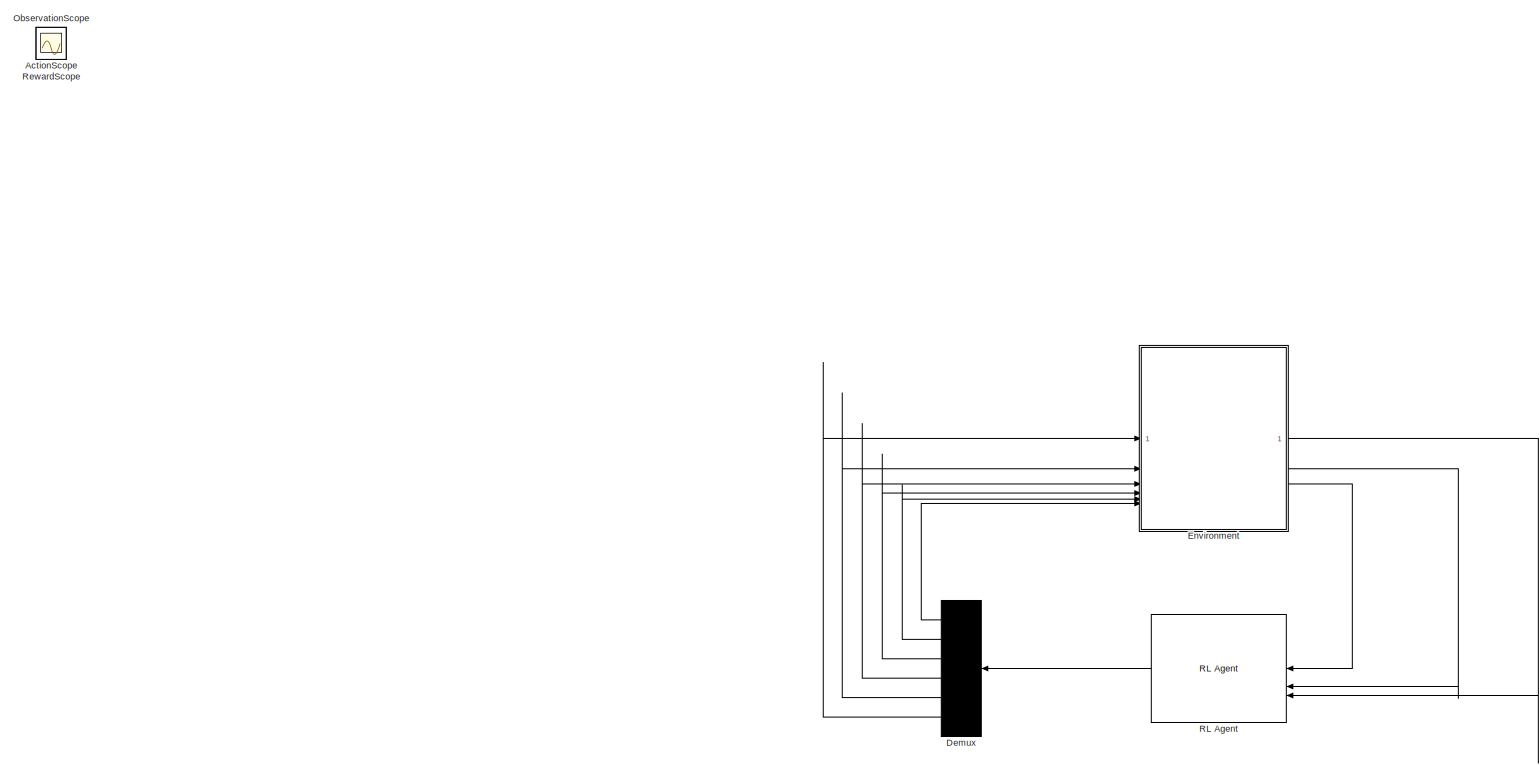
[diagram: root canvas - part 1/1, most of the canvas]
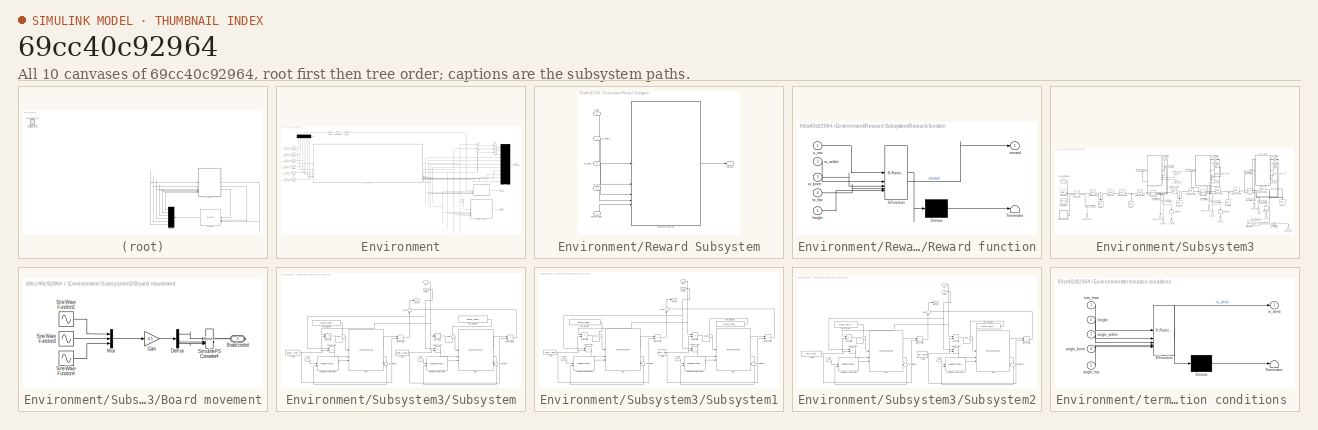
[diagram: thumbnail index - all 10 canvases of the model, root first then tree order]
MODEL slx_69cc40c92964
KIND model
CONFIG AbsTol = auto
CONFIG EnableMultiTasking = off
CONFIG FixedStep = auto
CONFIG MaxStep = auto
CONFIG MinStep = auto
CONFIG RelTol = 1e-3
CONFIG SampleTimeConstraint = Unconstrained
CONFIG SolverName = VariableStepAuto
CONFIG StartTime = 0.0
CONFIG StopTime = 25
WORKSPACE source: MATLAB code (in-file)
WORKSPACE mCart = 1
WORKSPACE mPend = 1
WORKSPACE g = 9.81
WORKSPACE L = 0.5
WORKSPACE theta0 = 180
WORKSPACE Kd = 10
BLOCK [Scope] ActionScope
  Floating = off
  IOType = viewer
  NumInputPorts = 1
  ScopeSpecificationString = Simulink.scopes.TimeScopeBlockCfg('CurrentConfiguration', extmgr.ConfigurationSet(extmgr.Configuration('Core','General UI',true),extmgr.Configuration('Core','Source UI',true),extmgr.Configuration('Sources','WiredSimulink',true,'DataLoggingVariableName','ScopeData1'),extmgr.Configuration('Visuals','Time Domain',true,'SerializedDisplays',{struct('MinYLimReal','-16','MaxYLimReal','16','YLabelReal',''...<+1414ch>
BLOCK [Demux] Demux
  NameLocation = top
  Outputs = 6
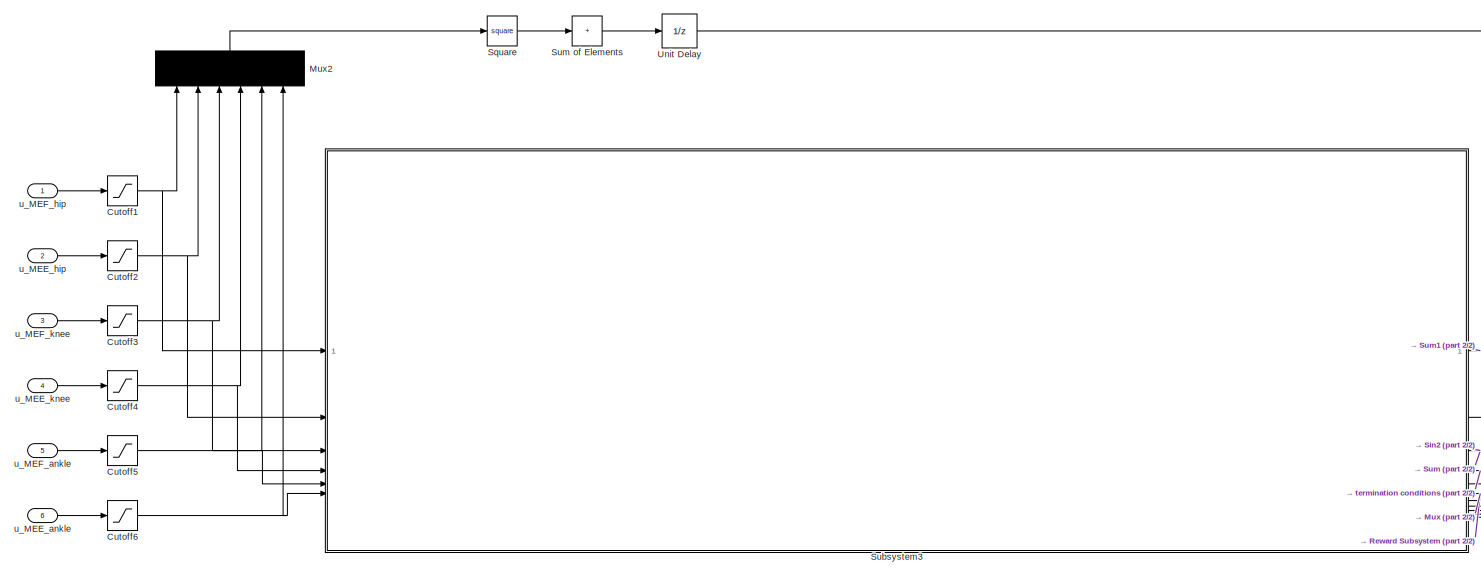
[diagram: Environment - part 1/2, top left region]
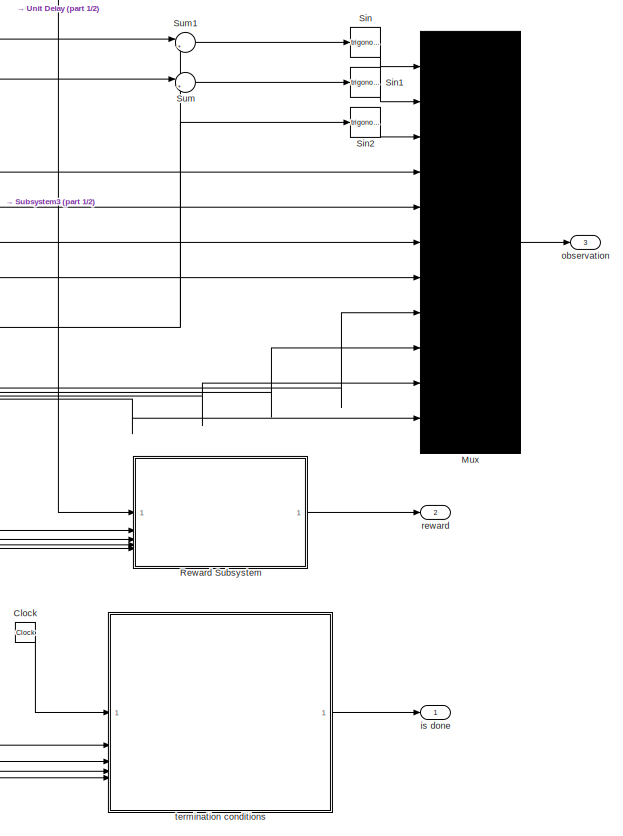
[diagram: Environment - part 2/2, right side, full height]
BLOCK [SubSystem] Environment
BLOCK [Clock] Environment/Clock
BLOCK [Saturate] Environment/Cutoff1
  LowerLimit = 0
  UpperLimit = u_cutoff
BLOCK [Saturate] Environment/Cutoff2
  LowerLimit = 0
  UpperLimit = u_cutoff
BLOCK [Saturate] Environment/Cutoff3
  LowerLimit = 0
  UpperLimit = u_cutoff
BLOCK [Saturate] Environment/Cutoff4
  LowerLimit = 0
  UpperLimit = u_cutoff
BLOCK [Saturate] Environment/Cutoff5
  LowerLimit = 0
  UpperLimit = u_cutoff
BLOCK [Saturate] Environment/Cutoff6
  LowerLimit = 0
  UpperLimit = u_cutoff
BLOCK [Mux] Environment/Mux
  DisplayOption = bar
  Inputs = 11
BLOCK [Mux] Environment/Mux2
  DisplayOption = bar
  Inputs = 6
  NameLocation = right
BLOCK [SubSystem] Environment/Reward Subsystem
BLOCK [SubSystem] Environment/Reward Subsystem/Reward function
  ErrorFcn = Stateflow.Translate.translate
  PermitHierarchicalResolution = ExplicitOnly
  SFBlockType = MATLAB Function
  TreatAsAtomicUnit = on
BLOCK [Demux] Environment/Reward Subsystem/Reward function/ Demux 
  Outputs = 1
BLOCK [S-Function] Environment/Reward Subsystem/Reward function/ SFunction 
  EnableBusSupport = on
  FunctionName = sf_sfun
  PortCounts = [5 2]
  SFcnIsStateOwnerBlock = off
  SFunctionDeploymentMode = off
  Tag = Stateflow S-Function 3
BLOCK [Terminator] Environment/Reward Subsystem/Reward function/ Terminator 
BLOCK [Inport] Environment/Reward Subsystem/Reward function/height
  Port = 5
BLOCK [Outport] Environment/Reward Subsystem/Reward function/reward
BLOCK [Inport] Environment/Reward Subsystem/Reward function/u_vec
BLOCK [Inport] Environment/Reward Subsystem/Reward function/w_ankle
  Port = 2
BLOCK [Inport] Environment/Reward Subsystem/Reward function/w_hip
  Port = 4
BLOCK [Inport] Environment/Reward Subsystem/Reward function/w_knee
  Port = 3
BLOCK [Inport] Environment/Reward Subsystem/height_body
  Port = 2
BLOCK [Outport] Environment/Reward Subsystem/reward
BLOCK [Inport] Environment/Reward Subsystem/u_vec
BLOCK [Inport] Environment/Reward Subsystem/w_ankle
  Port = 3
BLOCK [Inport] Environment/Reward Subsystem/w_hip
  Port = 4
BLOCK [Inport] Environment/Reward Subsystem/w_knee
  Port = 5
BLOCK [Trigonometry] Environment/Sin
BLOCK [Trigonometry] Environment/Sin1
BLOCK [Trigonometry] Environment/Sin2
BLOCK [Math] Environment/Square
  Operator = square
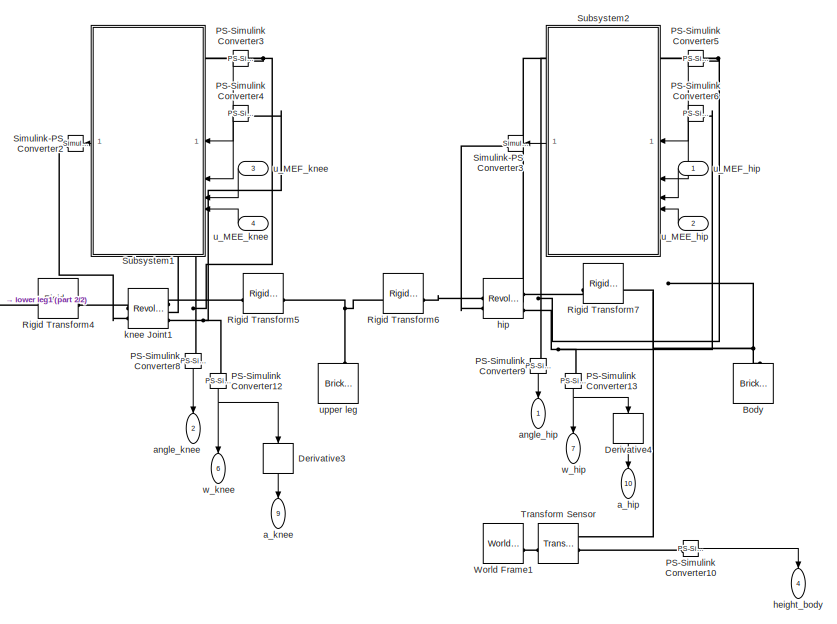
[diagram: Environment/Subsystem3 - part 1/2, right side, full height]
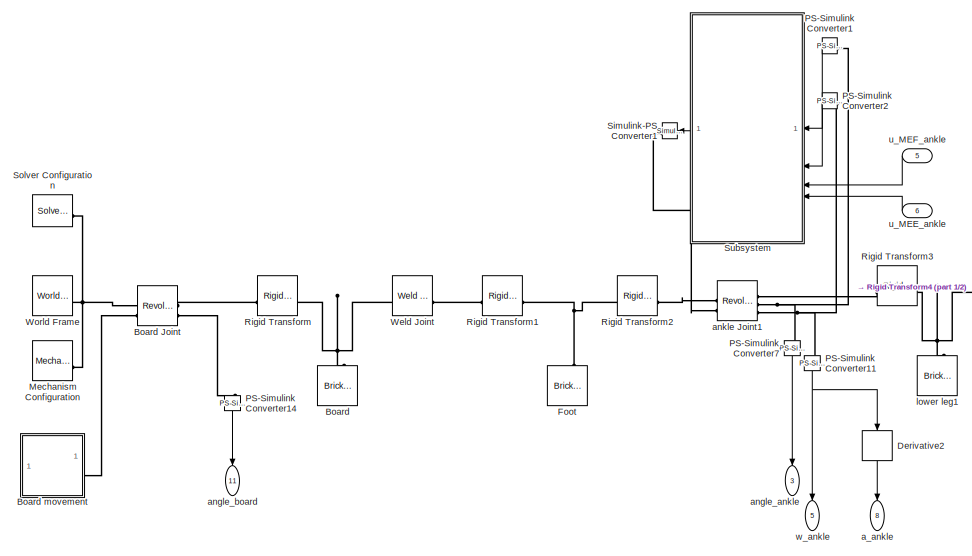
[diagram: Environment/Subsystem3 - part 2/2, left side, full height]
BLOCK [SubSystem] Environment/Subsystem3
BLOCK [Reference] Environment/Subsystem3/Board  REF=sm_lib/Body Elements/Brick Solid
  SourceBlock = sm_lib/Body Elements/Brick Solid
  SourceType = Brick Solid
BLOCK [Reference] Environment/Subsystem3/Board Joint  REF=sm_lib/Joints/Revolute Joint
  SourceBlock = sm_lib/Joints/Revolute Joint
  SourceType = Revolute Joint
BLOCK [SubSystem] Environment/Subsystem3/Board movement
BLOCK [PMIOPort] Environment/Subsystem3/Board movement/Board control
  Side = Right
BLOCK [Demux] Environment/Subsystem3/Board movement/Demux
  Outputs = 3
BLOCK [Gain] Environment/Subsystem3/Board movement/Gain
  Gain = 0.5
BLOCK [Mux] Environment/Subsystem3/Board movement/Mux
  DisplayOption = bar
  Inputs = 3
BLOCK [Reference] Environment/Subsystem3/Board movement/Simulink-PS Converter4  REF=nesl_utility/Simulink-PS
Converter
  SourceBlock = nesl_utility/Simulink-PS\nConverter
  SourceType = Simulink-PS\nConverter
BLOCK [Sin] Environment/Subsystem3/Board movement/Sine Wave Function2
  Amplitude = 0.5
  Frequency = board_freq
  SampleTime = 0
BLOCK [Sin] Environment/Subsystem3/Board movement/Sine Wave Function3
  Amplitude = 0.5*board_freq
  Frequency = board_freq
  Phase = pi/2
  SampleTime = 0
BLOCK [Sin] Environment/Subsystem3/Board movement/Sine Wave Function4
  Amplitude = -0.5*board_freq*board_freq
  Frequency = board_freq
  SampleTime = 0
BLOCK [Reference] Environment/Subsystem3/Body  REF=sm_lib/Body Elements/Brick Solid
  SourceBlock = sm_lib/Body Elements/Brick Solid
  SourceType = Brick Solid
BLOCK [Derivative] Environment/Subsystem3/Derivative2
  NameLocation = left
BLOCK [Derivative] Environment/Subsystem3/Derivative3
  NameLocation = left
BLOCK [Derivative] Environment/Subsystem3/Derivative4
  NameLocation = left
BLOCK [Reference] Environment/Subsystem3/Foot  REF=sm_lib/Body Elements/Brick Solid
  SourceBlock = sm_lib/Body Elements/Brick Solid
  SourceType = Brick Solid
BLOCK [Reference] Environment/Subsystem3/Mechanism Configuration  REF=sm_lib/Utilities/Mechanism
Configuration
  SourceBlock = sm_lib/Utilities/Mechanism\nConfiguration
  SourceType = Mechanism\nConfiguration
BLOCK [Reference] Environment/Subsystem3/PS-Simulink Converter1  REF=nesl_utility/PS-Simulink
Converter
  NameLocation = top
  SourceBlock = nesl_utility/PS-Simulink\nConverter
  SourceType = PS-Simulink\nConverter
BLOCK [Reference] Environment/Subsystem3/PS-Simulink Converter10  REF=nesl_utility/PS-Simulink
Converter
  SourceBlock = nesl_utility/PS-Simulink\nConverter
  SourceType = PS-Simulink\nConverter
BLOCK [Reference] Environment/Subsystem3/PS-Simulink Converter11  REF=nesl_utility/PS-Simulink
Converter
  NameLocation = left
  SourceBlock = nesl_utility/PS-Simulink\nConverter
  SourceType = PS-Simulink\nConverter
BLOCK [Reference] Environment/Subsystem3/PS-Simulink Converter12  REF=nesl_utility/PS-Simulink
Converter
  NameLocation = left
  SourceBlock = nesl_utility/PS-Simulink\nConverter
  SourceType = PS-Simulink\nConverter
BLOCK [Reference] Environment/Subsystem3/PS-Simulink Converter13  REF=nesl_utility/PS-Simulink
Converter
  NameLocation = left
  SourceBlock = nesl_utility/PS-Simulink\nConverter
  SourceType = PS-Simulink\nConverter
BLOCK [Reference] Environment/Subsystem3/PS-Simulink Converter14  REF=nesl_utility/PS-Simulink
Converter
  NameLocation = left
  SourceBlock = nesl_utility/PS-Simulink\nConverter
  SourceType = PS-Simulink\nConverter
BLOCK [Reference] Environment/Subsystem3/PS-Simulink Converter2  REF=nesl_utility/PS-Simulink
Converter
  NameLocation = top
  SourceBlock = nesl_utility/PS-Simulink\nConverter
  SourceType = PS-Simulink\nConverter
BLOCK [Reference] Environment/Subsystem3/PS-Simulink Converter3  REF=nesl_utility/PS-Simulink
Converter
  NameLocation = top
  SourceBlock = nesl_utility/PS-Simulink\nConverter
  SourceType = PS-Simulink\nConverter
BLOCK [Reference] Environment/Subsystem3/PS-Simulink Converter4  REF=nesl_utility/PS-Simulink
Converter
  NameLocation = top
  SourceBlock = nesl_utility/PS-Simulink\nConverter
  SourceType = PS-Simulink\nConverter
BLOCK [Reference] Environment/Subsystem3/PS-Simulink Converter5  REF=nesl_utility/PS-Simulink
Converter
  NameLocation = top
  SourceBlock = nesl_utility/PS-Simulink\nConverter
  SourceType = PS-Simulink\nConverter
BLOCK [Reference] Environment/Subsystem3/PS-Simulink Converter6  REF=nesl_utility/PS-Simulink
Converter
  NameLocation = top
  SourceBlock = nesl_utility/PS-Simulink\nConverter
  SourceType = PS-Simulink\nConverter
BLOCK [Reference] Environment/Subsystem3/PS-Simulink Converter7  REF=nesl_utility/PS-Simulink
Converter
  NameLocation = left
  SourceBlock = nesl_utility/PS-Simulink\nConverter
  SourceType = PS-Simulink\nConverter
BLOCK [Reference] Environment/Subsystem3/PS-Simulink Converter8  REF=nesl_utility/PS-Simulink
Converter
  NameLocation = left
  SourceBlock = nesl_utility/PS-Simulink\nConverter
  SourceType = PS-Simulink\nConverter
BLOCK [Reference] Environment/Subsystem3/PS-Simulink Converter9  REF=nesl_utility/PS-Simulink
Converter
  NameLocation = left
  SourceBlock = nesl_utility/PS-Simulink\nConverter
  SourceType = PS-Simulink\nConverter
BLOCK [Reference] Environment/Subsystem3/Rigid Transform  REF=sm_lib/Frames and
Transforms/Rigid
Transform
  SourceBlock = sm_lib/Frames and\nTransforms/Rigid\nTransform
  SourceType = Rigid\nTransform
BLOCK [Reference] Environment/Subsystem3/Rigid Transform1  REF=sm_lib/Frames and
Transforms/Rigid
Transform
  SourceBlock = sm_lib/Frames and\nTransforms/Rigid\nTransform
  SourceType = Rigid\nTransform
BLOCK [Reference] Environment/Subsystem3/Rigid Transform2  REF=sm_lib/Frames and
Transforms/Rigid
Transform
  SourceBlock = sm_lib/Frames and\nTransforms/Rigid\nTransform
  SourceType = Rigid\nTransform
BLOCK [Reference] Environment/Subsystem3/Rigid Transform3  REF=sm_lib/Frames and
Transforms/Rigid
Transform
  SourceBlock = sm_lib/Frames and\nTransforms/Rigid\nTransform
  SourceType = Rigid\nTransform
BLOCK [Reference] Environment/Subsystem3/Rigid Transform4  REF=sm_lib/Frames and
Transforms/Rigid
Transform
  SourceBlock = sm_lib/Frames and\nTransforms/Rigid\nTransform
  SourceType = Rigid\nTransform
BLOCK [Reference] Environment/Subsystem3/Rigid Transform5  REF=sm_lib/Frames and
Transforms/Rigid
Transform
  SourceBlock = sm_lib/Frames and\nTransforms/Rigid\nTransform
  SourceType = Rigid\nTransform
BLOCK [Reference] Environment/Subsystem3/Rigid Transform6  REF=sm_lib/Frames and
Transforms/Rigid
Transform
  SourceBlock = sm_lib/Frames and\nTransforms/Rigid\nTransform
  SourceType = Rigid\nTransform
BLOCK [Reference] Environment/Subsystem3/Rigid Transform7  REF=sm_lib/Frames and
Transforms/Rigid
Transform
  SourceBlock = sm_lib/Frames and\nTransforms/Rigid\nTransform
  SourceType = Rigid\nTransform
BLOCK [Reference] Environment/Subsystem3/Simulink-PS Converter1  REF=nesl_utility/Simulink-PS
Converter
  NameLocation = top
  SourceBlock = nesl_utility/Simulink-PS\nConverter
  SourceType = Simulink-PS\nConverter
BLOCK [Reference] Environment/Subsystem3/Simulink-PS Converter2  REF=nesl_utility/Simulink-PS
Converter
  NameLocation = top
  SourceBlock = nesl_utility/Simulink-PS\nConverter
  SourceType = Simulink-PS\nConverter
BLOCK [Reference] Environment/Subsystem3/Simulink-PS Converter3  REF=nesl_utility/Simulink-PS
Converter
  NameLocation = top
  SourceBlock = nesl_utility/Simulink-PS\nConverter
  SourceType = Simulink-PS\nConverter
BLOCK [Reference] Environment/Subsystem3/Solver Configuration  REF=nesl_utility/Solver
Configuration
  SourceBlock = nesl_utility/Solver\nConfiguration
  SourceType = Solver\nConfiguration
BLOCK [SubSystem] Environment/Subsystem3/Subsystem
  NameLocation = top
BLOCK [Reference] Environment/Subsystem3/Subsystem/ActivationDynamicsHatze  REF=Library_mtu_simulink/ActivationDynamicsHatze
  SourceBlock = Library_mtu_simulink/ActivationDynamicsHatze
  SourceType = Activation Dynamics
BLOCK [Reference] Environment/Subsystem3/Subsystem/ActivationDynamicsHatze1  REF=Library_mtu_simulink/ActivationDynamicsHatze
  SourceBlock = Library_mtu_simulink/ActivationDynamicsHatze
  SourceType = Activation Dynamics
BLOCK [Reference] Environment/Subsystem3/Subsystem/MEE  REF=Library_mtu_simulink/MuscleTendonUnit
  SourceBlock = Library_mtu_simulink/MuscleTendonUnit
  SourceType = Muscle Tendon Complex Model
BLOCK [Reference] Environment/Subsystem3/Subsystem/MEF  REF=Library_mtu_simulink/MuscleTendonUnit
  SourceBlock = Library_mtu_simulink/MuscleTendonUnit
  SourceType = Muscle Tendon Complex Model
BLOCK [Sum] Environment/Subsystem3/Subsystem/Sum
  Inputs = +|+
BLOCK [Sum] Environment/Subsystem3/Subsystem/Sum1
  Inputs = +|+
BLOCK [Sum] Environment/Subsystem3/Subsystem/Sum2
  Inputs = |--
  NameLocation = right
BLOCK [Terminator] Environment/Subsystem3/Subsystem/Terminator
BLOCK [Terminator] Environment/Subsystem3/Subsystem/Terminator1
BLOCK [Product] Environment/Subsystem3/Subsystem/fMTU*rMEE
BLOCK [Product] Environment/Subsystem3/Subsystem/fMTU*rMEF
BLOCK [Constant] Environment/Subsystem3/Subsystem/lMTC_init_MEE
  Value = Param_ankle_MEE.l_MTC_init
BLOCK [Constant] Environment/Subsystem3/Subsystem/lMTC_init_MEF
  Value = Param_ankle_MEF.l_MTC_init
BLOCK [Inport] Environment/Subsystem3/Subsystem/phi
BLOCK [Product] Environment/Subsystem3/Subsystem/phi*rMEE
BLOCK [Product] Environment/Subsystem3/Subsystem/phi*rMEF
BLOCK [Inport] Environment/Subsystem3/Subsystem/phidot
  Port = 2
BLOCK [Product] Environment/Subsystem3/Subsystem/phidot*rMEE
BLOCK [Product] Environment/Subsystem3/Subsystem/phidot*rMEF
BLOCK [Constant] Environment/Subsystem3/Subsystem/r_MEE
  Value = ankle_r_MEE
BLOCK [Constant] Environment/Subsystem3/Subsystem/r_MEF
  Value = ankle_r_MEF
BLOCK [Outport] Environment/Subsystem3/Subsystem/torque
BLOCK [Inport] Environment/Subsystem3/Subsystem/u_MEE
  Port = 4
BLOCK [Inport] Environment/Subsystem3/Subsystem/u_MEF
  Port = 3
BLOCK [SubSystem] Environment/Subsystem3/Subsystem1
  NameLocation = top
BLOCK [Reference] Environment/Subsystem3/Subsystem1/ActivationDynamicsHatze  REF=Library_mtu_simulink/ActivationDynamicsHatze
  SourceBlock = Library_mtu_simulink/ActivationDynamicsHatze
  SourceType = Activation Dynamics
BLOCK [Reference] Environment/Subsystem3/Subsystem1/ActivationDynamicsHatze1  REF=Library_mtu_simulink/ActivationDynamicsHatze
  SourceBlock = Library_mtu_simulink/ActivationDynamicsHatze
  SourceType = Activation Dynamics
BLOCK [Reference] Environment/Subsystem3/Subsystem1/MEE  REF=Library_mtu_simulink/MuscleTendonUnit
  SourceBlock = Library_mtu_simulink/MuscleTendonUnit
  SourceType = Muscle Tendon Complex Model
BLOCK [Reference] Environment/Subsystem3/Subsystem1/MEF  REF=Library_mtu_simulink/MuscleTendonUnit
  SourceBlock = Library_mtu_simulink/MuscleTendonUnit
  SourceType = Muscle Tendon Complex Model
BLOCK [Sum] Environment/Subsystem3/Subsystem1/Sum
  Inputs = +|+
BLOCK [Sum] Environment/Subsystem3/Subsystem1/Sum1
  Inputs = +|+
BLOCK [Sum] Environment/Subsystem3/Subsystem1/Sum2
  Inputs = |--
  NameLocation = right
BLOCK [Terminator] Environment/Subsystem3/Subsystem1/Terminator
BLOCK [Terminator] Environment/Subsystem3/Subsystem1/Terminator1
BLOCK [Product] Environment/Subsystem3/Subsystem1/fMTU*rMEE
BLOCK [Product] Environment/Subsystem3/Subsystem1/fMTU*rMEF
BLOCK [Constant] Environment/Subsystem3/Subsystem1/lMTC_init_MEE
  Value = Param_knee_MEE.l_MTC_init
BLOCK [Constant] Environment/Subsystem3/Subsystem1/lMTC_init_MEF
  Value = Param_knee_MEF.l_MTC_init
BLOCK [Inport] Environment/Subsystem3/Subsystem1/phi
BLOCK [Product] Environment/Subsystem3/Subsystem1/phi*rMEE
BLOCK [Product] Environment/Subsystem3/Subsystem1/phi*rMEF
BLOCK [Inport] Environment/Subsystem3/Subsystem1/phidot
  Port = 2
BLOCK [Product] Environment/Subsystem3/Subsystem1/phidot*rMEE
BLOCK [Product] Environment/Subsystem3/Subsystem1/phidot*rMEF
BLOCK [Constant] Environment/Subsystem3/Subsystem1/r_MEE
  Value = knee_r_MEE
BLOCK [Constant] Environment/Subsystem3/Subsystem1/r_MEF
  Value = knee_r_MEF
BLOCK [Outport] Environment/Subsystem3/Subsystem1/torque
BLOCK [Inport] Environment/Subsystem3/Subsystem1/u_MEE
  Port = 4
BLOCK [Inport] Environment/Subsystem3/Subsystem1/u_MEF
  Port = 3
BLOCK [SubSystem] Environment/Subsystem3/Subsystem2
  NameLocation = top
BLOCK [Reference] Environment/Subsystem3/Subsystem2/ActivationDynamicsHatze  REF=Library_mtu_simulink/ActivationDynamicsHatze
  SourceBlock = Library_mtu_simulink/ActivationDynamicsHatze
  SourceType = Activation Dynamics
BLOCK [Reference] Environment/Subsystem3/Subsystem2/ActivationDynamicsHatze1  REF=Library_mtu_simulink/ActivationDynamicsHatze
  SourceBlock = Library_mtu_simulink/ActivationDynamicsHatze
  SourceType = Activation Dynamics
BLOCK [Reference] Environment/Subsystem3/Subsystem2/MEE  REF=Library_mtu_simulink/MuscleTendonUnit
  SourceBlock = Library_mtu_simulink/MuscleTendonUnit
  SourceType = Muscle Tendon Complex Model
BLOCK [Reference] Environment/Subsystem3/Subsystem2/MEF  REF=Library_mtu_simulink/MuscleTendonUnit
  SourceBlock = Library_mtu_simulink/MuscleTendonUnit
  SourceType = Muscle Tendon Complex Model
BLOCK [Sum] Environment/Subsystem3/Subsystem2/Sum
  Inputs = +|+
BLOCK [Sum] Environment/Subsystem3/Subsystem2/Sum1
  Inputs = +|+
BLOCK [Sum] Environment/Subsystem3/Subsystem2/Sum2
  Inputs = |--
  NameLocation = right
BLOCK [Terminator] Environment/Subsystem3/Subsystem2/Terminator
BLOCK [Terminator] Environment/Subsystem3/Subsystem2/Terminator1
BLOCK [Product] Environment/Subsystem3/Subsystem2/fMTU*rMEE
BLOCK [Product] Environment/Subsystem3/Subsystem2/fMTU*rMEF
BLOCK [Constant] Environment/Subsystem3/Subsystem2/lMTC_init_MEE
  Value = Param_hip_MEE.l_MTC_init
BLOCK [Constant] Environment/Subsystem3/Subsystem2/lMTC_init_MEF
  Value = Param_hip_MEF.l_MTC_init
BLOCK [Inport] Environment/Subsystem3/Subsystem2/phi
BLOCK [Product] Environment/Subsystem3/Subsystem2/phi*rMEE
BLOCK [Product] Environment/Subsystem3/Subsystem2/phi*rMEF
BLOCK [Inport] Environment/Subsystem3/Subsystem2/phidot
  Port = 2
BLOCK [Product] Environment/Subsystem3/Subsystem2/phidot*rMEE
BLOCK [Product] Environment/Subsystem3/Subsystem2/phidot*rMEF
BLOCK [Constant] Environment/Subsystem3/Subsystem2/r_MEE
  Value = hip_r_MEE
BLOCK [Constant] Environment/Subsystem3/Subsystem2/r_MEF
  Value = hip_r_MEF
BLOCK [Outport] Environment/Subsystem3/Subsystem2/torque
BLOCK [Inport] Environment/Subsystem3/Subsystem2/u_MEE
  Port = 4
BLOCK [Inport] Environment/Subsystem3/Subsystem2/u_MEF
  Port = 3
BLOCK [Reference] Environment/Subsystem3/Transform Sensor  REF=sm_lib/Frames and
Transforms/Transform
Sensor
  SourceBlock = sm_lib/Frames and\nTransforms/Transform\nSensor
  SourceType = Transform\nSensor
BLOCK [Reference] Environment/Subsystem3/Weld Joint  REF=sm_lib/Joints/Weld Joint
  SourceBlock = sm_lib/Joints/Weld Joint
  SourceType = Weld Joint
BLOCK [Reference] Environment/Subsystem3/World Frame  REF=sm_lib/Frames and
Transforms/World Frame
  SourceBlock = sm_lib/Frames and\nTransforms/World Frame
  SourceType = World Frame
BLOCK [Reference] Environment/Subsystem3/World Frame1  REF=sm_lib/Frames and
Transforms/World Frame
  SourceBlock = sm_lib/Frames and\nTransforms/World Frame
  SourceType = World Frame
BLOCK [Outport] Environment/Subsystem3/a_ankle
  NameLocation = left
  Port = 8
BLOCK [Outport] Environment/Subsystem3/a_hip
  NameLocation = left
  Port = 10
BLOCK [Outport] Environment/Subsystem3/a_knee
  NameLocation = left
  Port = 9
BLOCK [Outport] Environment/Subsystem3/angle_ankle
  NameLocation = left
  Port = 3
BLOCK [Outport] Environment/Subsystem3/angle_board
  NameLocation = left
  Port = 11
BLOCK [Outport] Environment/Subsystem3/angle_hip
  NameLocation = left
BLOCK [Outport] Environment/Subsystem3/angle_knee
  NameLocation = left
  Port = 2
BLOCK [Reference] Environment/Subsystem3/ankle Joint1  REF=sm_lib/Joints/Revolute Joint
  SourceBlock = sm_lib/Joints/Revolute Joint
  SourceType = Revolute Joint
BLOCK [Outport] Environment/Subsystem3/height_body
  NameLocation = left
  Port = 4
BLOCK [Reference] Environment/Subsystem3/hip  REF=sm_lib/Joints/Revolute Joint
  SourceBlock = sm_lib/Joints/Revolute Joint
  SourceType = Revolute Joint
BLOCK [Reference] Environment/Subsystem3/knee Joint1  REF=sm_lib/Joints/Revolute Joint
  SourceBlock = sm_lib/Joints/Revolute Joint
  SourceType = Revolute Joint
BLOCK [Reference] Environment/Subsystem3/lower leg1  REF=sm_lib/Body Elements/Brick Solid
  SourceBlock = sm_lib/Body Elements/Brick Solid
  SourceType = Brick Solid
BLOCK [Inport] Environment/Subsystem3/u_MEE_ankle
  Port = 6
BLOCK [Inport] Environment/Subsystem3/u_MEE_hip
  NameLocation = top
  Port = 2
BLOCK [Inport] Environment/Subsystem3/u_MEE_knee
  Port = 4
BLOCK [Inport] Environment/Subsystem3/u_MEF_ankle
  NameLocation = top
  Port = 5
BLOCK [Inport] Environment/Subsystem3/u_MEF_hip
BLOCK [Inport] Environment/Subsystem3/u_MEF_knee
  NameLocation = top
  Port = 3
BLOCK [Reference] Environment/Subsystem3/upper leg  REF=sm_lib/Body Elements/Brick Solid
  SourceBlock = sm_lib/Body Elements/Brick Solid
  SourceType = Brick Solid
BLOCK [Outport] Environment/Subsystem3/w_ankle
  NameLocation = left
  Port = 5
BLOCK [Outport] Environment/Subsystem3/w_hip
  NameLocation = left
  Port = 7
BLOCK [Outport] Environment/Subsystem3/w_knee
  NameLocation = left
  Port = 6
BLOCK [Sum] Environment/Sum
  Inputs = |++
BLOCK [Sum] Environment/Sum of Elements
  IconShape = rectangular
  Inputs = +
BLOCK [Sum] Environment/Sum1
  Inputs = |++
BLOCK [UnitDelay] Environment/Unit Delay
  HasFrameUpgradeWarning = on
  SampleTime = -1
BLOCK [Outport] Environment/is done
  VectorParamsAs1DForOutWhenUnconnected = off
BLOCK [Outport] Environment/observation
  Port = 3
BLOCK [Outport] Environment/reward
  Port = 2
  VectorParamsAs1DForOutWhenUnconnected = off
BLOCK [SubSystem] Environment/termination conditions 
  ErrorFcn = Stateflow.Translate.translate
  PermitHierarchicalResolution = ExplicitOnly
  SFBlockType = MATLAB Function
  TreatAsAtomicUnit = on
BLOCK [Demux] Environment/termination conditions / Demux 
  Outputs = 1
BLOCK [S-Function] Environment/termination conditions / SFunction 
  EnableBusSupport = on
  FunctionName = sf_sfun
  PortCounts = [5 2]
  SFcnIsStateOwnerBlock = off
  SFunctionDeploymentMode = off
  Tag = Stateflow S-Function 1
BLOCK [Terminator] Environment/termination conditions / Terminator 
BLOCK [Inport] Environment/termination conditions /angle_ankle
  Port = 3
BLOCK [Inport] Environment/termination conditions /angle_hip
  Port = 5
BLOCK [Inport] Environment/termination conditions /angle_knee
  Port = 4
BLOCK [Inport] Environment/termination conditions /height
  Port = 2
BLOCK [Outport] Environment/termination conditions /is_done
BLOCK [Inport] Environment/termination conditions /sim_time
BLOCK [Inport] Environment/u_MEE_ankle
  Port = 6
BLOCK [Inport] Environment/u_MEE_hip
  Port = 2
BLOCK [Inport] Environment/u_MEE_knee
  Port = 4
BLOCK [Inport] Environment/u_MEF_ankle
  Port = 5
BLOCK [Inport] Environment/u_MEF_hip
BLOCK [Inport] Environment/u_MEF_knee
  Port = 3
BLOCK [Scope] ObservationScope
  Floating = off
  IOType = viewer
  NumInputPorts = 1
  ScopeSpecificationString = Simulink.scopes.TimeScopeBlockCfg('CurrentConfiguration', extmgr.ConfigurationSet(extmgr.Configuration('Core','General UI',true),extmgr.Configuration('Core','Source UI',true),extmgr.Configuration('Sources','WiredSimulink',true),extmgr.Configuration('Visuals','Time Domain',true,'SerializedDisplays',{struct('MinYLimReal','-0.2486','MaxYLimReal','0.02762','YLabelReal','','MinYLimMag','0.00000','MaxYL...<+3374ch>
BLOCK [Reference] RL Agent  REF=rllib/RL Agent
  SourceBlock = rllib/RL Agent
  SourceType = RL Agent
BLOCK [Scope] RewardScope
  Floating = off
  IOType = viewer
  NumInputPorts = 1
  ScopeSpecificationString = Simulink.scopes.TimeScopeBlockCfg('CurrentConfiguration', extmgr.ConfigurationSet(extmgr.Configuration('Core','General UI',true),extmgr.Configuration('Core','Source UI',true),extmgr.Configuration('Sources','WiredSimulink',true,'DataLoggingVariableName','ScopeData2'),extmgr.Configuration('Visuals','Time Domain',true,'SerializedDisplays',{struct('MinYLimReal','-0.70946','MaxYLimReal','-0.42421','YLa...<+1361ch>
LINE Demux:1 -> Environment:6
LINE Demux:2 -> Environment:5
LINE Demux:3 -> Environment:4
LINE Demux:4 -> Environment:3
LINE Demux:5 -> Environment:2
LINE Demux:6 -> Environment:1
LINE Environment/Clock:1 -> Environment/termination conditions :1
NET Environment/Cutoff1:1 -> Environment/Mux2:1, Environment/Subsystem3:1
NET Environment/Cutoff2:1 -> Environment/Mux2:2, Environment/Subsystem3:2
NET Environment/Cutoff3:1 -> Environment/Mux2:3, Environment/Subsystem3:3
NET Environment/Cutoff4:1 -> Environment/Mux2:4, Environment/Subsystem3:4
NET Environment/Cutoff5:1 -> Environment/Mux2:5, Environment/Subsystem3:5
NET Environment/Cutoff6:1 -> Environment/Mux2:6, Environment/Subsystem3:6
LINE Environment/Mux2:1 -> Environment/Square:1
LINE Environment/Mux:1 -> Environment/observation:1
LINE Environment/Reward Subsystem/Reward function:1 -> Environment/Reward Subsystem/reward:1
LINE Environment/Reward Subsystem/height_body:1 -> Environment/Reward Subsystem/Reward function:5
LINE Environment/Reward Subsystem/u_vec:1 -> Environment/Reward Subsystem/Reward function:1
LINE Environment/Reward Subsystem/w_ankle:1 -> Environment/Reward Subsystem/Reward function:2
LINE Environment/Reward Subsystem/w_hip:1 -> Environment/Reward Subsystem/Reward function:4
LINE Environment/Reward Subsystem/w_knee:1 -> Environment/Reward Subsystem/Reward function:3
LINE Environment/Reward Subsystem:1 -> Environment/reward:1
LINE Environment/Sin1:1 -> Environment/Mux:2
LINE Environment/Sin2:1 -> Environment/Mux:3
LINE Environment/Sin:1 -> Environment/Mux:1
LINE Environment/Square:1 -> Environment/Sum of Elements:1
LINE Environment/Subsystem3/Board movement/Demux:1 -> Environment/Subsystem3/Board movement/Simulink-PS Converter4:1
LINE Environment/Subsystem3/Board movement/Demux:2 -> Environment/Subsystem3/Board movement/Simulink-PS Converter4:2
LINE Environment/Subsystem3/Board movement/Demux:3 -> Environment/Subsystem3/Board movement/Simulink-PS Converter4:3
LINE Environment/Subsystem3/Board movement/Gain:1 -> Environment/Subsystem3/Board movement/Demux:1
LINE Environment/Subsystem3/Board movement/Mux:1 -> Environment/Subsystem3/Board movement/Gain:1
LINE Environment/Subsystem3/Board movement/Sine Wave Function2:1 -> Environment/Subsystem3/Board movement/Mux:1
LINE Environment/Subsystem3/Board movement/Sine Wave Function3:1 -> Environment/Subsystem3/Board movement/Mux:2
LINE Environment/Subsystem3/Board movement/Sine Wave Function4:1 -> Environment/Subsystem3/Board movement/Mux:3
LINE Environment/Subsystem3/Derivative2:1 -> Environment/Subsystem3/a_ankle:1
LINE Environment/Subsystem3/Derivative3:1 -> Environment/Subsystem3/a_knee:1
LINE Environment/Subsystem3/Derivative4:1 -> Environment/Subsystem3/a_hip:1
LINE Environment/Subsystem3/PS-Simulink Converter10:1 -> Environment/Subsystem3/height_body:1
NET Environment/Subsystem3/PS-Simulink Converter11:1 -> Environment/Subsystem3/Derivative2:1, Environment/Subsystem3/w_ankle:1
NET Environment/Subsystem3/PS-Simulink Converter12:1 -> Environment/Subsystem3/Derivative3:1, Environment/Subsystem3/w_knee:1
NET Environment/Subsystem3/PS-Simulink Converter13:1 -> Environment/Subsystem3/Derivative4:1, Environment/Subsystem3/w_hip:1
LINE Environment/Subsystem3/PS-Simulink Converter14:1 -> Environment/Subsystem3/angle_board:1
LINE Environment/Subsystem3/PS-Simulink Converter1:1 -> Environment/Subsystem3/Subsystem:1
LINE Environment/Subsystem3/PS-Simulink Converter2:1 -> Environment/Subsystem3/Subsystem:2
LINE Environment/Subsystem3/PS-Simulink Converter3:1 -> Environment/Subsystem3/Subsystem1:1
LINE Environment/Subsystem3/PS-Simulink Converter4:1 -> Environment/Subsystem3/Subsystem1:2
LINE Environment/Subsystem3/PS-Simulink Converter5:1 -> Environment/Subsystem3/Subsystem2:1
LINE Environment/Subsystem3/PS-Simulink Converter6:1 -> Environment/Subsystem3/Subsystem2:2
LINE Environment/Subsystem3/PS-Simulink Converter7:1 -> Environment/Subsystem3/angle_ankle:1
LINE Environment/Subsystem3/PS-Simulink Converter8:1 -> Environment/Subsystem3/angle_knee:1
LINE Environment/Subsystem3/PS-Simulink Converter9:1 -> Environment/Subsystem3/angle_hip:1
LINE Environment/Subsystem3/Subsystem/ActivationDynamicsHatze1:1 -> Environment/Subsystem3/Subsystem/MEE:3
LINE Environment/Subsystem3/Subsystem/ActivationDynamicsHatze:1 -> Environment/Subsystem3/Subsystem/MEF:3
LINE Environment/Subsystem3/Subsystem/MEE:1 -> Environment/Subsystem3/Subsystem/fMTU*rMEE:1
LINE Environment/Subsystem3/Subsystem/MEE:2 -> Environment/Subsystem3/Subsystem/ActivationDynamicsHatze1:2
LINE Environment/Subsystem3/Subsystem/MEE:3 -> Environment/Subsystem3/Subsystem/Terminator1:1
LINE Environment/Subsystem3/Subsystem/MEF:1 -> Environment/Subsystem3/Subsystem/fMTU*rMEF:1
LINE Environment/Subsystem3/Subsystem/MEF:2 -> Environment/Subsystem3/Subsystem/ActivationDynamicsHatze:2
LINE Environment/Subsystem3/Subsystem/MEF:3 -> Environment/Subsystem3/Subsystem/Terminator:1
LINE Environment/Subsystem3/Subsystem/Sum1:1 -> Environment/Subsystem3/Subsystem/MEE:1
LINE Environment/Subsystem3/Subsystem/Sum2:1 -> Environment/Subsystem3/Subsystem/torque:1
LINE Environment/Subsystem3/Subsystem/Sum:1 -> Environment/Subsystem3/Subsystem/MEF:1
LINE Environment/Subsystem3/Subsystem/fMTU*rMEE:1 -> Environment/Subsystem3/Subsystem/Sum2:2
LINE Environment/Subsystem3/Subsystem/fMTU*rMEF:1 -> Environment/Subsystem3/Subsystem/Sum2:1
LINE Environment/Subsystem3/Subsystem/lMTC_init_MEE:1 -> Environment/Subsystem3/Subsystem/Sum1:1
LINE Environment/Subsystem3/Subsystem/lMTC_init_MEF:1 -> Environment/Subsystem3/Subsystem/Sum:1
LINE Environment/Subsystem3/Subsystem/phi*rMEE:1 -> Environment/Subsystem3/Subsystem/Sum1:2
LINE Environment/Subsystem3/Subsystem/phi*rMEF:1 -> Environment/Subsystem3/Subsystem/Sum:2
NET Environment/Subsystem3/Subsystem/phi:1 -> Environment/Subsystem3/Subsystem/phi*rMEE:1, Environment/Subsystem3/Subsystem/phi*rMEF:1
LINE Environment/Subsystem3/Subsystem/phidot*rMEE:1 -> Environment/Subsystem3/Subsystem/MEE:2
LINE Environment/Subsystem3/Subsystem/phidot*rMEF:1 -> Environment/Subsystem3/Subsystem/MEF:2
NET Environment/Subsystem3/Subsystem/phidot:1 -> Environment/Subsystem3/Subsystem/phidot*rMEE:1, Environment/Subsystem3/Subsystem/phidot*rMEF:1
NET Environment/Subsystem3/Subsystem/r_MEE:1 -> Environment/Subsystem3/Subsystem/fMTU*rMEE:2, Environment/Subsystem3/Subsystem/phi*rMEE:2, Environment/Subsystem3/Subsystem/phidot*rMEE:2
NET Environment/Subsystem3/Subsystem/r_MEF:1 -> Environment/Subsystem3/Subsystem/fMTU*rMEF:2, Environment/Subsystem3/Subsystem/phi*rMEF:2, Environment/Subsystem3/Subsystem/phidot*rMEF:2
LINE Environment/Subsystem3/Subsystem/u_MEE:1 -> Environment/Subsystem3/Subsystem/ActivationDynamicsHatze1:1
LINE Environment/Subsystem3/Subsystem/u_MEF:1 -> Environment/Subsystem3/Subsystem/ActivationDynamicsHatze:1
LINE Environment/Subsystem3/Subsystem1/ActivationDynamicsHatze1:1 -> Environment/Subsystem3/Subsystem1/MEE:3
LINE Environment/Subsystem3/Subsystem1/ActivationDynamicsHatze:1 -> Environment/Subsystem3/Subsystem1/MEF:3
LINE Environment/Subsystem3/Subsystem1/MEE:1 -> Environment/Subsystem3/Subsystem1/fMTU*rMEE:1
LINE Environment/Subsystem3/Subsystem1/MEE:2 -> Environment/Subsystem3/Subsystem1/ActivationDynamicsHatze1:2
LINE Environment/Subsystem3/Subsystem1/MEE:3 -> Environment/Subsystem3/Subsystem1/Terminator1:1
LINE Environment/Subsystem3/Subsystem1/MEF:1 -> Environment/Subsystem3/Subsystem1/fMTU*rMEF:1
LINE Environment/Subsystem3/Subsystem1/MEF:2 -> Environment/Subsystem3/Subsystem1/ActivationDynamicsHatze:2
LINE Environment/Subsystem3/Subsystem1/MEF:3 -> Environment/Subsystem3/Subsystem1/Terminator:1
LINE Environment/Subsystem3/Subsystem1/Sum1:1 -> Environment/Subsystem3/Subsystem1/MEE:1
LINE Environment/Subsystem3/Subsystem1/Sum2:1 -> Environment/Subsystem3/Subsystem1/torque:1
LINE Environment/Subsystem3/Subsystem1/Sum:1 -> Environment/Subsystem3/Subsystem1/MEF:1
LINE Environment/Subsystem3/Subsystem1/fMTU*rMEE:1 -> Environment/Subsystem3/Subsystem1/Sum2:2
LINE Environment/Subsystem3/Subsystem1/fMTU*rMEF:1 -> Environment/Subsystem3/Subsystem1/Sum2:1
LINE Environment/Subsystem3/Subsystem1/lMTC_init_MEE:1 -> Environment/Subsystem3/Subsystem1/Sum1:1
LINE Environment/Subsystem3/Subsystem1/lMTC_init_MEF:1 -> Environment/Subsystem3/Subsystem1/Sum:1
LINE Environment/Subsystem3/Subsystem1/phi*rMEE:1 -> Environment/Subsystem3/Subsystem1/Sum1:2
LINE Environment/Subsystem3/Subsystem1/phi*rMEF:1 -> Environment/Subsystem3/Subsystem1/Sum:2
NET Environment/Subsystem3/Subsystem1/phi:1 -> Environment/Subsystem3/Subsystem1/phi*rMEE:1, Environment/Subsystem3/Subsystem1/phi*rMEF:1
LINE Environment/Subsystem3/Subsystem1/phidot*rMEE:1 -> Environment/Subsystem3/Subsystem1/MEE:2
LINE Environment/Subsystem3/Subsystem1/phidot*rMEF:1 -> Environment/Subsystem3/Subsystem1/MEF:2
NET Environment/Subsystem3/Subsystem1/phidot:1 -> Environment/Subsystem3/Subsystem1/phidot*rMEE:1, Environment/Subsystem3/Subsystem1/phidot*rMEF:1
NET Environment/Subsystem3/Subsystem1/r_MEE:1 -> Environment/Subsystem3/Subsystem1/fMTU*rMEE:2, Environment/Subsystem3/Subsystem1/phi*rMEE:2, Environment/Subsystem3/Subsystem1/phidot*rMEE:2
NET Environment/Subsystem3/Subsystem1/r_MEF:1 -> Environment/Subsystem3/Subsystem1/fMTU*rMEF:2, Environment/Subsystem3/Subsystem1/phi*rMEF:2, Environment/Subsystem3/Subsystem1/phidot*rMEF:2
LINE Environment/Subsystem3/Subsystem1/u_MEE:1 -> Environment/Subsystem3/Subsystem1/ActivationDynamicsHatze1:1
LINE Environment/Subsystem3/Subsystem1/u_MEF:1 -> Environment/Subsystem3/Subsystem1/ActivationDynamicsHatze:1
LINE Environment/Subsystem3/Subsystem1:1 -> Environment/Subsystem3/Simulink-PS Converter2:1
LINE Environment/Subsystem3/Subsystem2/ActivationDynamicsHatze1:1 -> Environment/Subsystem3/Subsystem2/MEE:3
LINE Environment/Subsystem3/Subsystem2/ActivationDynamicsHatze:1 -> Environment/Subsystem3/Subsystem2/MEF:3
LINE Environment/Subsystem3/Subsystem2/MEE:1 -> Environment/Subsystem3/Subsystem2/fMTU*rMEE:1
LINE Environment/Subsystem3/Subsystem2/MEE:2 -> Environment/Subsystem3/Subsystem2/ActivationDynamicsHatze1:2
LINE Environment/Subsystem3/Subsystem2/MEE:3 -> Environment/Subsystem3/Subsystem2/Terminator1:1
LINE Environment/Subsystem3/Subsystem2/MEF:1 -> Environment/Subsystem3/Subsystem2/fMTU*rMEF:1
LINE Environment/Subsystem3/Subsystem2/MEF:2 -> Environment/Subsystem3/Subsystem2/ActivationDynamicsHatze:2
LINE Environment/Subsystem3/Subsystem2/MEF:3 -> Environment/Subsystem3/Subsystem2/Terminator:1
LINE Environment/Subsystem3/Subsystem2/Sum1:1 -> Environment/Subsystem3/Subsystem2/MEE:1
LINE Environment/Subsystem3/Subsystem2/Sum2:1 -> Environment/Subsystem3/Subsystem2/torque:1
LINE Environment/Subsystem3/Subsystem2/Sum:1 -> Environment/Subsystem3/Subsystem2/MEF:1
LINE Environment/Subsystem3/Subsystem2/fMTU*rMEE:1 -> Environment/Subsystem3/Subsystem2/Sum2:2
LINE Environment/Subsystem3/Subsystem2/fMTU*rMEF:1 -> Environment/Subsystem3/Subsystem2/Sum2:1
LINE Environment/Subsystem3/Subsystem2/lMTC_init_MEE:1 -> Environment/Subsystem3/Subsystem2/Sum1:1
LINE Environment/Subsystem3/Subsystem2/lMTC_init_MEF:1 -> Environment/Subsystem3/Subsystem2/Sum:1
LINE Environment/Subsystem3/Subsystem2/phi*rMEE:1 -> Environment/Subsystem3/Subsystem2/Sum1:2
LINE Environment/Subsystem3/Subsystem2/phi*rMEF:1 -> Environment/Subsystem3/Subsystem2/Sum:2
NET Environment/Subsystem3/Subsystem2/phi:1 -> Environment/Subsystem3/Subsystem2/phi*rMEE:1, Environment/Subsystem3/Subsystem2/phi*rMEF:1
LINE Environment/Subsystem3/Subsystem2/phidot*rMEE:1 -> Environment/Subsystem3/Subsystem2/MEE:2
LINE Environment/Subsystem3/Subsystem2/phidot*rMEF:1 -> Environment/Subsystem3/Subsystem2/MEF:2
NET Environment/Subsystem3/Subsystem2/phidot:1 -> Environment/Subsystem3/Subsystem2/phidot*rMEE:1, Environment/Subsystem3/Subsystem2/phidot*rMEF:1
NET Environment/Subsystem3/Subsystem2/r_MEE:1 -> Environment/Subsystem3/Subsystem2/fMTU*rMEE:2, Environment/Subsystem3/Subsystem2/phi*rMEE:2, Environment/Subsystem3/Subsystem2/phidot*rMEE:2
NET Environment/Subsystem3/Subsystem2/r_MEF:1 -> Environment/Subsystem3/Subsystem2/fMTU*rMEF:2, Environment/Subsystem3/Subsystem2/phi*rMEF:2, Environment/Subsystem3/Subsystem2/phidot*rMEF:2
LINE Environment/Subsystem3/Subsystem2/u_MEE:1 -> Environment/Subsystem3/Subsystem2/ActivationDynamicsHatze1:1
LINE Environment/Subsystem3/Subsystem2/u_MEF:1 -> Environment/Subsystem3/Subsystem2/ActivationDynamicsHatze:1
LINE Environment/Subsystem3/Subsystem2:1 -> Environment/Subsystem3/Simulink-PS Converter3:1
LINE Environment/Subsystem3/Subsystem:1 -> Environment/Subsystem3/Simulink-PS Converter1:1
LINE Environment/Subsystem3/u_MEE_ankle:1 -> Environment/Subsystem3/Subsystem:4
LINE Environment/Subsystem3/u_MEE_hip:1 -> Environment/Subsystem3/Subsystem2:4
LINE Environment/Subsystem3/u_MEE_knee:1 -> Environment/Subsystem3/Subsystem1:4
LINE Environment/Subsystem3/u_MEF_ankle:1 -> Environment/Subsystem3/Subsystem:3
LINE Environment/Subsystem3/u_MEF_hip:1 -> Environment/Subsystem3/Subsystem2:3
LINE Environment/Subsystem3/u_MEF_knee:1 -> Environment/Subsystem3/Subsystem1:3
NET Environment/Subsystem3:1 -> Environment/Sum1:1, Environment/termination conditions :5
LINE Environment/Subsystem3:10 -> Environment/Mux:10
LINE Environment/Subsystem3:11 -> Environment/Mux:11
NET Environment/Subsystem3:2 -> Environment/Sum:1, Environment/termination conditions :4
NET Environment/Subsystem3:3 -> Environment/Sin2:1, Environment/Sum:2, Environment/termination conditions :3
NET Environment/Subsystem3:4 -> Environment/Mux:6, Environment/Reward Subsystem:2, Environment/termination conditions :2
NET Environment/Subsystem3:5 -> Environment/Mux:4, Environment/Reward Subsystem:3
NET Environment/Subsystem3:6 -> Environment/Mux:5, Environment/Reward Subsystem:5
NET Environment/Subsystem3:7 -> Environment/Mux:7, Environment/Reward Subsystem:4
LINE Environment/Subsystem3:8 -> Environment/Mux:8
LINE Environment/Subsystem3:9 -> Environment/Mux:9
LINE Environment/Sum of Elements:1 -> Environment/Unit Delay:1
LINE Environment/Sum1:1 -> Environment/Sin:1
NET Environment/Sum:1 -> Environment/Sin1:1, Environment/Sum1:2
LINE Environment/Unit Delay:1 -> Environment/Reward Subsystem:1
LINE Environment/termination conditions :1 -> Environment/is done:1
LINE Environment/u_MEE_ankle:1 -> Environment/Cutoff6:1
LINE Environment/u_MEE_hip:1 -> Environment/Cutoff2:1
LINE Environment/u_MEE_knee:1 -> Environment/Cutoff4:1
LINE Environment/u_MEF_ankle:1 -> Environment/Cutoff5:1
LINE Environment/u_MEF_hip:1 -> Environment/Cutoff1:1
LINE Environment/u_MEF_knee:1 -> Environment/Cutoff3:1
LINE Environment:1 -> RL Agent:3
LINE Environment:2 -> RL Agent:2
LINE Environment:3 -> RL Agent:1
LINE RL Agent:1 -> Demux:1
PNET net1: Environment/Subsystem3/Board Joint:LConn1 -- Environment/Subsystem3/Mechanism Configuration:RConn1 -- Environment/Subsystem3/Solver Configuration:RConn1 -- Environment/Subsystem3/World Frame:RConn1
PLINE Environment/Subsystem3/Board Joint:LConn2 -- Environment/Subsystem3/Board movement:RConn1
PLINE Environment/Subsystem3/Board Joint:RConn1 -- Environment/Subsystem3/Rigid Transform:LConn1
PLINE Environment/Subsystem3/Board Joint:RConn2 -- Environment/Subsystem3/PS-Simulink Converter14:LConn1
PLINE Environment/Subsystem3/Board movement/Board control:RConn1 -- Environment/Subsystem3/Board movement/Simulink-PS Converter4:RConn1
PNET net2: Environment/Subsystem3/Board:RConn1 -- Environment/Subsystem3/Rigid Transform:RConn1 -- Environment/Subsystem3/Weld Joint:LConn1
PNET net3: Environment/Subsystem3/Body:RConn1 -- Environment/Subsystem3/Rigid Transform7:RConn1 -- Environment/Subsystem3/Transform Sensor:RConn1
PNET net4: Environment/Subsystem3/Foot:RConn1 -- Environment/Subsystem3/Rigid Transform1:RConn1 -- Environment/Subsystem3/Rigid Transform2:LConn1
PLINE Environment/Subsystem3/PS-Simulink Converter10:LConn1 -- Environment/Subsystem3/Transform Sensor:RConn3
PNET net5: Environment/Subsystem3/PS-Simulink Converter11:LConn1 -- Environment/Subsystem3/PS-Simulink Converter2:LConn1 -- Environment/Subsystem3/ankle Joint1:RConn3
PNET net6: Environment/Subsystem3/PS-Simulink Converter12:LConn1 -- Environment/Subsystem3/PS-Simulink Converter4:LConn1 -- Environment/Subsystem3/knee Joint1:RConn3
PNET net7: Environment/Subsystem3/PS-Simulink Converter13:LConn1 -- Environment/Subsystem3/PS-Simulink Converter6:LConn1 -- Environment/Subsystem3/hip:RConn3
PNET net8: Environment/Subsystem3/PS-Simulink Converter1:LConn1 -- Environment/Subsystem3/PS-Simulink Converter7:LConn1 -- Environment/Subsystem3/ankle Joint1:RConn2
PNET net9: Environment/Subsystem3/PS-Simulink Converter3:LConn1 -- Environment/Subsystem3/PS-Simulink Converter8:LConn1 -- Environment/Subsystem3/knee Joint1:RConn2
PNET net10: Environment/Subsystem3/PS-Simulink Converter5:LConn1 -- Environment/Subsystem3/PS-Simulink Converter9:LConn1 -- Environment/Subsystem3/hip:RConn2
PLINE Environment/Subsystem3/Rigid Transform1:LConn1 -- Environment/Subsystem3/Weld Joint:RConn1
PLINE Environment/Subsystem3/Rigid Transform2:RConn1 -- Environment/Subsystem3/ankle Joint1:LConn1
PLINE Environment/Subsystem3/Rigid Transform3:LConn1 -- Environment/Subsystem3/ankle Joint1:RConn1
PNET net11: Environment/Subsystem3/Rigid Transform3:RConn1 -- Environment/Subsystem3/Rigid Transform4:LConn1 -- Environment/Subsystem3/lower leg1:RConn1
PLINE Environment/Subsystem3/Rigid Transform4:RConn1 -- Environment/Subsystem3/knee Joint1:LConn1
PLINE Environment/Subsystem3/Rigid Transform5:LConn1 -- Environment/Subsystem3/knee Joint1:RConn1
PNET net12: Environment/Subsystem3/Rigid Transform5:RConn1 -- Environment/Subsystem3/Rigid Transform6:LConn1 -- Environment/Subsystem3/upper leg:RConn1
PLINE Environment/Subsystem3/Rigid Transform6:RConn1 -- Environment/Subsystem3/hip:LConn1
PLINE Environment/Subsystem3/Rigid Transform7:LConn1 -- Environment/Subsystem3/hip:RConn1
PLINE Environment/Subsystem3/Simulink-PS Converter1:RConn1 -- Environment/Subsystem3/ankle Joint1:LConn2
PLINE Environment/Subsystem3/Simulink-PS Converter2:RConn1 -- Environment/Subsystem3/knee Joint1:LConn2
PLINE Environment/Subsystem3/Simulink-PS Converter3:RConn1 -- Environment/Subsystem3/hip:LConn2
PLINE Environment/Subsystem3/Transform Sensor:LConn1 -- Environment/Subsystem3/World Frame1:RConn1
note: NET lines group one-source signal fan-out (src -> all destinations, sorted); 1:1 wires keep LINE; PNET lines group multi-terminal physical nets as a canonical sorted terminal list (undirected conserving connections); 2-terminal nets keep the pairwise PLINE form
CHART Environment/termination conditions
 states=1 transitions=1
  STATE_LABEL 'eML_blk_kernel()'
  STATE_LABEL 'SCRIPT:\nfunction is_done = fcn(sim_time, height, angle_ankle, angle_knee, angle_hip)\n    epsilon = 0.1;\n    is_done = false;\n\n    % angles in radians\n    Tf = 20.0;\n    angle_ankle_min = -50/180*pi;\n    angle_ankle_max = 50/180*pi;\n    angle_knee_min = -135/180*pi;\n    angle_knee_max = 20/180*pi; \n    angle_hip_min = -40/180*pi;\n    angle_hip_max = 110/180*pi;\n\n    if sim_time > Tf\n        is_done...<+699ch>'
CHART Environment/Reward Subsystem/Reward function states=1 transitions=1
  STATE_LABEL 'eML_blk_kernel()'
  STATE_LABEL 'SCRIPT:\nfunction reward = fcn(u_vec, w_ankle, w_knee, w_hip, height)\n    % height: 0.0 m to 1.3 m\n    % u_sum: 0.0 to 1.0\n    % w_ankle: -1.0 to 1.0\n    % w_knee: -3.0 to 3.0\n    % w_hip: -3.0 to 3.0\n    \n    height_reward = height^2;\n    duration_reward = 1.0;\n    regulation_reward = -0.1 * u_vec;\n    speed_reward = -0.075*(w_ankle^2 + w_knee^2 + w_hip^2);\n    reward = height_reward + duration_re...<+45ch>'
CHART  states=0 transitions=0
CHART  states=0 transitions=0
